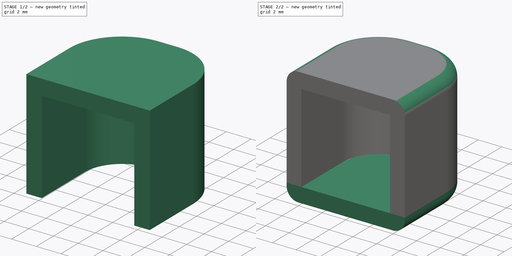
[diagram: build sequence overview — one tinted view per stage of 2, left to right]
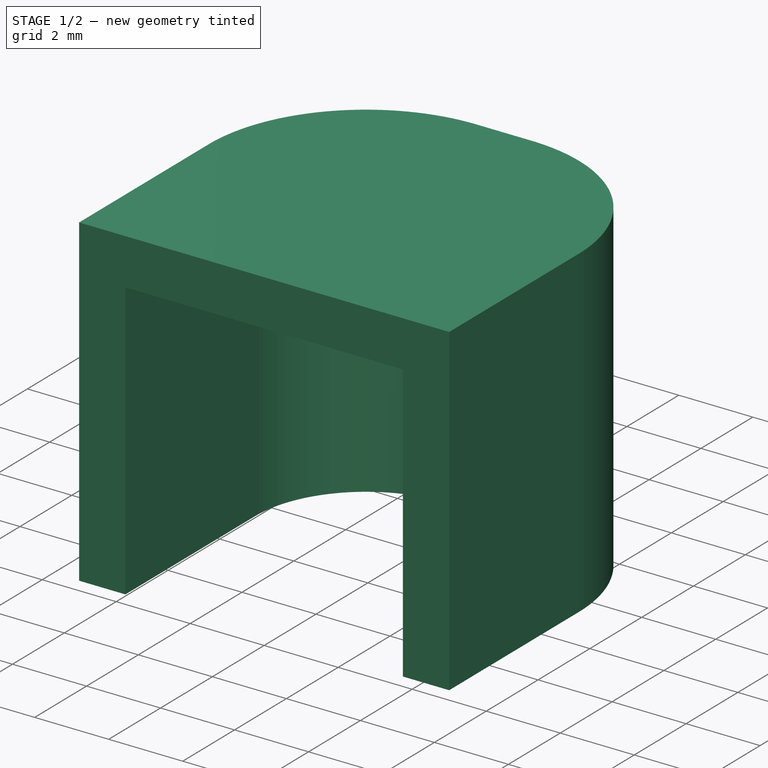
[diagram: stage 1 of 2 — iso view after this stage's code; geometry added in this stage tinted green]
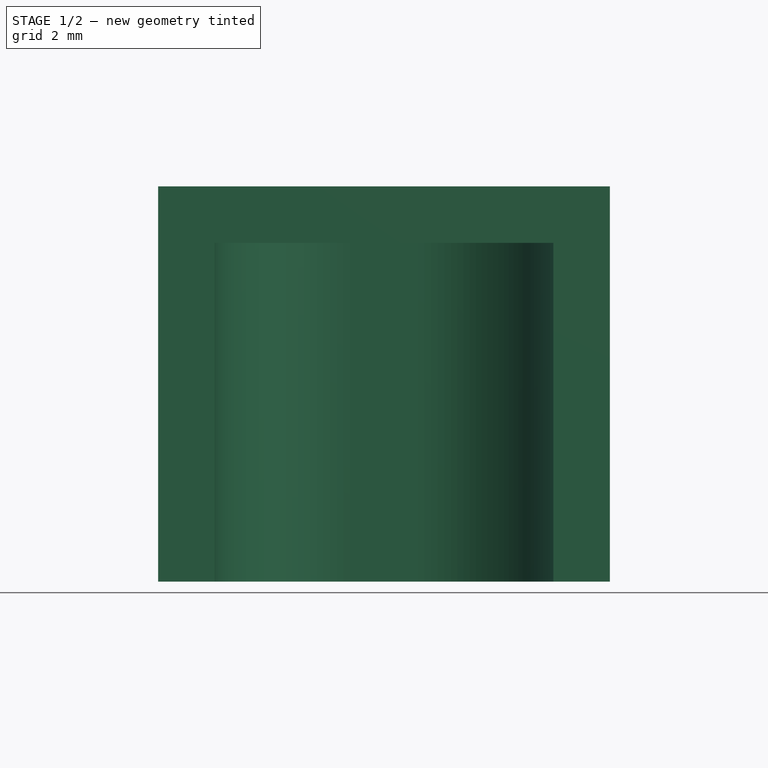
[diagram: stage 1 of 2 — front view after this stage's code; geometry added in this stage tinted green]
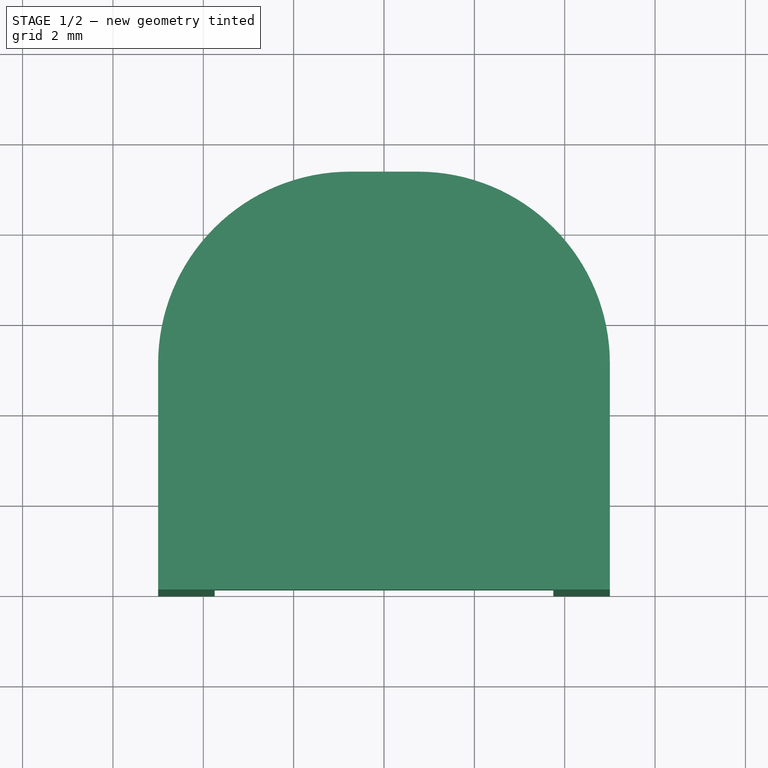
[diagram: stage 1 of 2 — top view after this stage's code; geometry added in this stage tinted green]
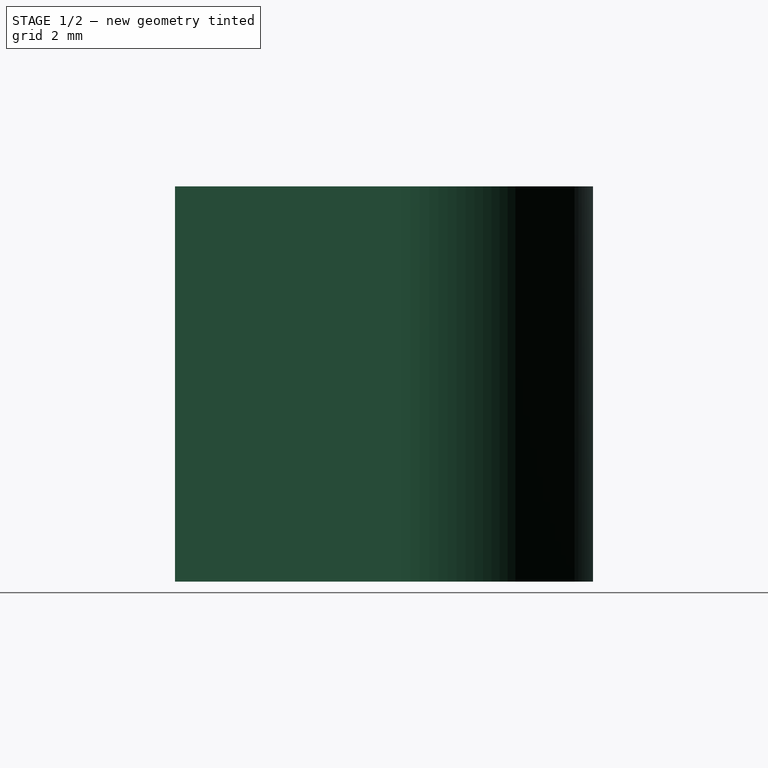
[diagram: stage 1 of 2 — right view after this stage's code; geometry added in this stage tinted green]
FCSTD DOCUMENT  (FreeCAD 0.19R21280 (Git))
Label: endcaps
License: All rights reserved
LicenseURL: http://en.wikipedia.org/wiki/All_rights_reserved
objects: Sketcher::SketchObject×2, PartDesign::Pad×2, PartDesign::Mirrored×1, PartDesign::Fillet×1, PartDesign::Body×1
note: 10 computed .brp shape members not serialized (recipe doc carries the construction recipe); baked Part::Feature solids carry a one-line shape summary decoded from their .brp

FEATURE [Sketcher::SketchObject] Sketch
  MapMode = 5
  Support = -> [XY_Plane]
  sketch-geometry (12):
    g0: LineSegment StartX=-5 StartY=0 StartZ=0 EndX=-3.75 EndY=0 EndZ=0
    g1: LineSegment StartX=-5 StartY=0 StartZ=0 EndX=-5 EndY=5 EndZ=0
    g2: LineSegment StartX=-3.75 StartY=0 StartZ=0 EndX=-3.75 EndY=5 EndZ=0
    g3: ArcOfCircle CenterX=-0.75 CenterY=5 CenterZ=0 NormalX=0 NormalY=0 NormalZ=1 AngleXU=0 Radius=3 StartAngle=1.5708 EndAngle=3.14159
    g4: LineSegment StartX=-0.75 StartY=8 StartZ=0 EndX=0.75 EndY=8 EndZ=0
    g5: ArcOfCircle CenterX=0.75 CenterY=5 CenterZ=0 NormalX=0 NormalY=0 NormalZ=1 AngleXU=0 Radius=3 StartAngle=0 EndAngle=1.5708
    g6: LineSegment StartX=3.75 StartY=5 StartZ=0 EndX=3.75 EndY=0 EndZ=0
    g7: LineSegment StartX=3.75 StartY=0 StartZ=0 EndX=5 EndY=0 EndZ=0
    g8: LineSegment StartX=5 StartY=0 StartZ=0 EndX=5 EndY=5 EndZ=0
    g9: ArcOfCircle CenterX=-0.75 CenterY=5 CenterZ=0 NormalX=0 NormalY=0 NormalZ=1 AngleXU=0 Radius=4.25 StartAngle=1.5708 EndAngle=3.14159
    g10: ArcOfCircle CenterX=0.75 CenterY=5 CenterZ=0 NormalX=0 NormalY=0 NormalZ=1 AngleXU=0 Radius=4.25 StartAngle=0 EndAngle=1.5708
    g11: LineSegment StartX=-0.75 StartY=9.25 StartZ=0 EndX=0.75 EndY=9.25 EndZ=0
  constraints (27):
    c: PointOnObject(g0,g-1)
    c: PointOnObject(g0,g-1)
    c: Coincident(g1,g0)
    c: Vertical(g1)
    c: Coincident(g2,g0)
    c: Vertical(g2)
    c: Symmetric(g4,g3,g-2)
    c: Tangent(g5,g4) = 1.5708
    c: Tangent(g4,g3) = 1.5708
    c: Tangent(g3,g2) = 1.5708
    c: Symmetric(g0,g6,g-2)
    c: Coincident(g6,g5)
    c: Symmetric(g5,g2,g-2)
    c: Coincident(g7,g6)
    c: Symmetric(g7,g0,g-2)
    c: Coincident(g8,g7)
    c: Symmetric(g8,g1,g-2)
    c: Coincident(g9,g3)
    c: Tangent(g10,g8) = -1.5708
    c: Tangent(g11,g9) = 1.5708
    c: Tangent(g10,g11) = 1.5708
    c: Coincident(g9,g1)
    c: Symmetric(g9,g10,g-2)
    c: Radius(g3) = 3
    c: DistanceX(g0,g6) = 7.5
    c: DistanceY(g8,g8) = 5
    c: DistanceX(g0,g0) = 1.25
FEATURE [PartDesign::Pad] Pad
  Length = 7.5
  Length2 = 100
  Midplane = true
  Profile = -> Sketch
  Type = 0
FEATURE [Sketcher::SketchObject] Sketch001
  MapMode = 5
  Placement = pos=(0,0,3.75) rot=(0,0,1;0rad)
  Support = -> [Pad]
  sketch-geometry (13):
    g0: LineSegment StartX=-5 StartY=0 StartZ=0 EndX=-3.75 EndY=0 EndZ=0
    g1: LineSegment StartX=-5 StartY=0 StartZ=0 EndX=-5 EndY=5 EndZ=0
    g2: LineSegment [constr] StartX=-3.75 StartY=0 StartZ=0 EndX=-3.75 EndY=5 EndZ=0
    g3: ArcOfCircle [constr] CenterX=-0.75 CenterY=5 CenterZ=0 NormalX=0 NormalY=0 NormalZ=1 AngleXU=0 Radius=3 StartAngle=1.5708 EndAngle=3.14159
    g4: LineSegment [constr] StartX=-0.75 StartY=8 StartZ=0 EndX=0.75 EndY=8 EndZ=0
    g5: ArcOfCircle [constr] CenterX=0.75 CenterY=5 CenterZ=0 NormalX=0 NormalY=0 NormalZ=1 AngleXU=0 Radius=3 StartAngle=0 EndAngle=1.5708
    g6: LineSegment [constr] StartX=3.75 StartY=5 StartZ=0 EndX=3.75 EndY=0 EndZ=0
    g7: LineSegment StartX=3.75 StartY=0 StartZ=0 EndX=5 EndY=0 EndZ=0
    g8: LineSegment StartX=5 StartY=0 StartZ=0 EndX=5 EndY=5 EndZ=0
    g9: ArcOfCircle CenterX=-0.75 CenterY=5 CenterZ=0 NormalX=0 NormalY=0 NormalZ=1 AngleXU=0 Radius=4.25 StartAngle=1.5708 EndAngle=3.14159
    g10: ArcOfCircle CenterX=0.75 CenterY=5 CenterZ=0 NormalX=0 NormalY=0 NormalZ=1 AngleXU=0 Radius=4.25 StartAngle=0 EndAngle=1.5708
    g11: LineSegment StartX=-0.75 StartY=9.25 StartZ=0 EndX=0.75 EndY=9.25 EndZ=0
    g12: LineSegment StartX=-3.75 StartY=0 StartZ=0 EndX=3.75 EndY=0 EndZ=0
  constraints (29):
    c: PointOnObject(g0,g-1)
    c: PointOnObject(g0,g-1)
    c: Coincident(g1,g0)
    c: Vertical(g1)
    c: Coincident(g2,g0)
    c: Vertical(g2)
    c: Symmetric(g4,g3,g-2)
    c: Tangent(g5,g4) = 1.5708
    c: Tangent(g4,g3) = 1.5708
    c: Tangent(g3,g2) = 1.5708
    c: Symmetric(g0,g6,g-2)
    c: Coincident(g6,g5)
    c: Symmetric(g5,g2,g-2)
    c: Coincident(g7,g6)
    c: Symmetric(g7,g0,g-2)
    c: Coincident(g8,g7)
    c: Symmetric(g8,g1,g-2)
    c: Coincident(g9,g3)
    c: Tangent(g10,g8) = -1.5708
    c: Tangent(g11,g9) = 1.5708
    c: Tangent(g10,g11) = 1.5708
    c: Coincident(g9,g1)
    c: Symmetric(g9,g10,g-2)
    c: Radius(g3) = 3
    c: DistanceX(g0,g6) = 7.5
    c: DistanceY(g8,g8) = 5
    c: DistanceX(g0,g0) = 1.25
    c: Coincident(g12,g0)
    c: Coincident(g12,g7)
FEATURE [PartDesign::Pad] Pad001
  BaseFeature = -> Pad
  Length = 1.25
  Length2 = 100
  Profile = -> Sketch001
  Type = 0
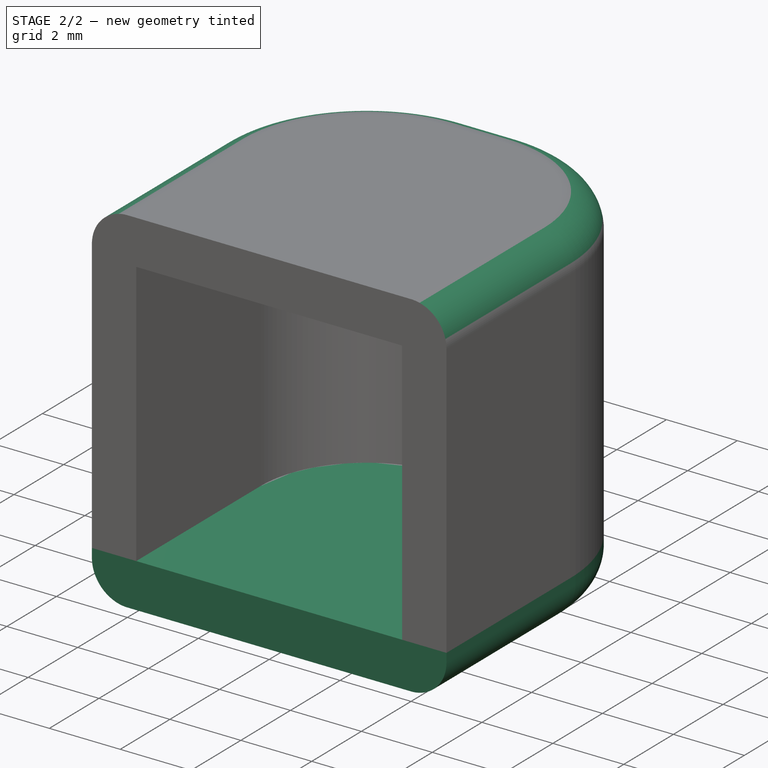
[diagram: stage 2 of 2 — iso view after this stage's code; geometry added in this stage tinted green]
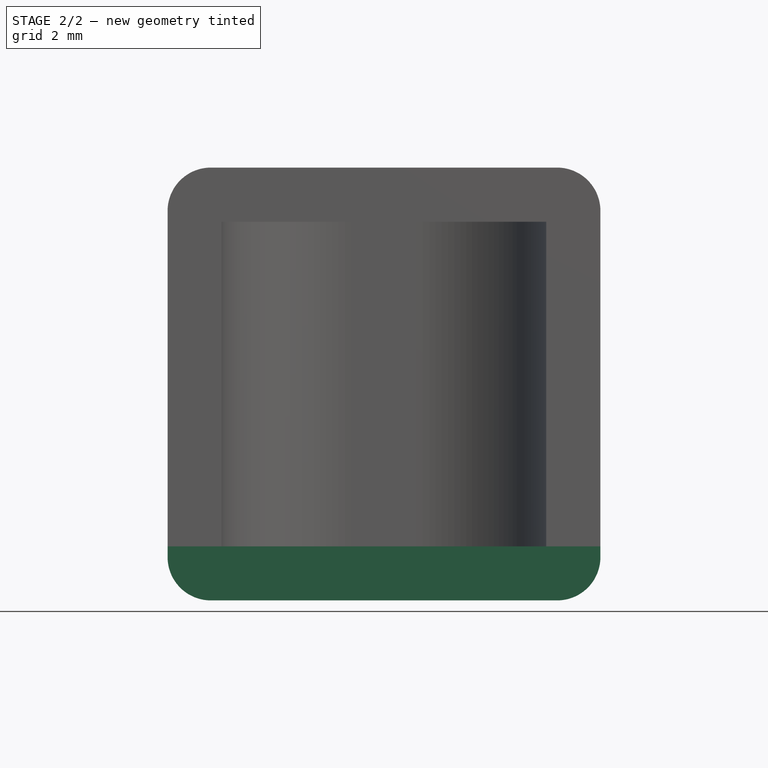
[diagram: stage 2 of 2 — front view after this stage's code; geometry added in this stage tinted green]
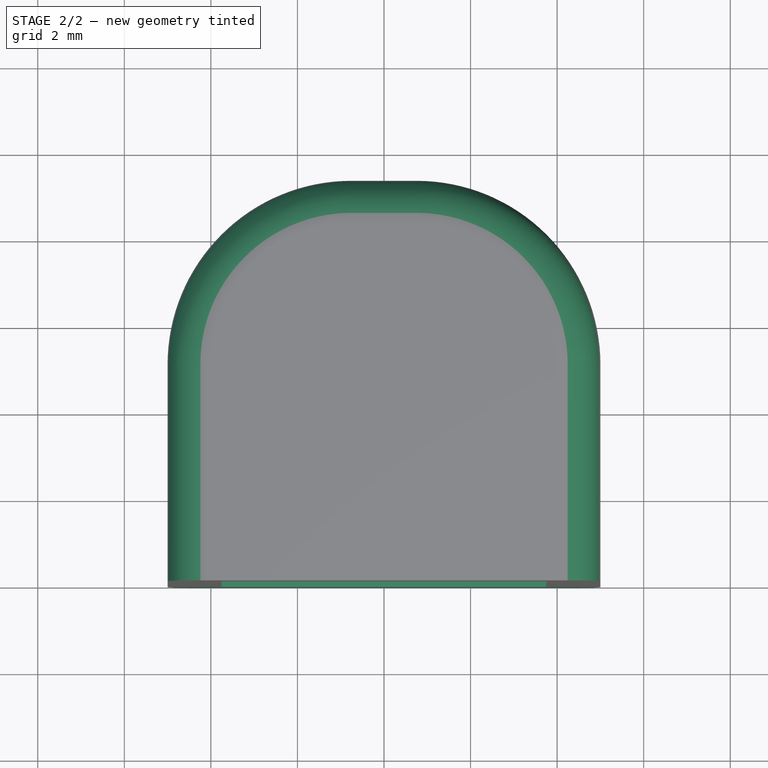
[diagram: stage 2 of 2 — top view after this stage's code; geometry added in this stage tinted green]
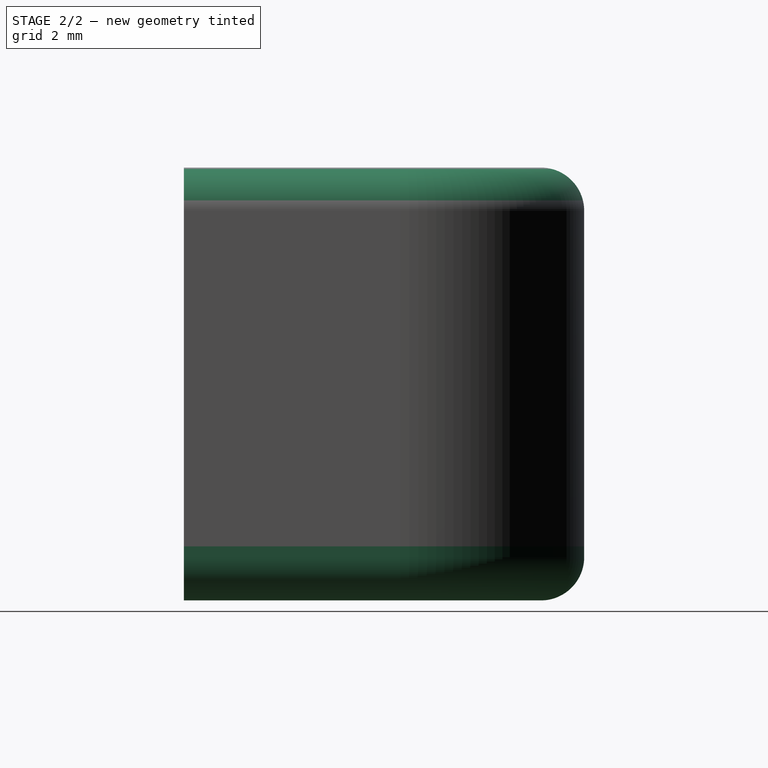
[diagram: stage 2 of 2 — right view after this stage's code; geometry added in this stage tinted green]
FEATURE [PartDesign::Mirrored] Mirrored
  BaseFeature = -> Pad001
  MirrorPlane = -> XY_Plane
  Originals = -> [Pad001]
FEATURE [PartDesign::Fillet] Fillet
  Base = -> Mirrored [Edge46,Edge39]
  BaseFeature = -> Mirrored
  Radius = 1
  SupportTransform = true
FEATURE [PartDesign::Body] Body
  Group = -> [Sketch,Pad,Pad001,Mirrored,Fillet]
  Origin = -> Origin
  Tip = -> Fillet
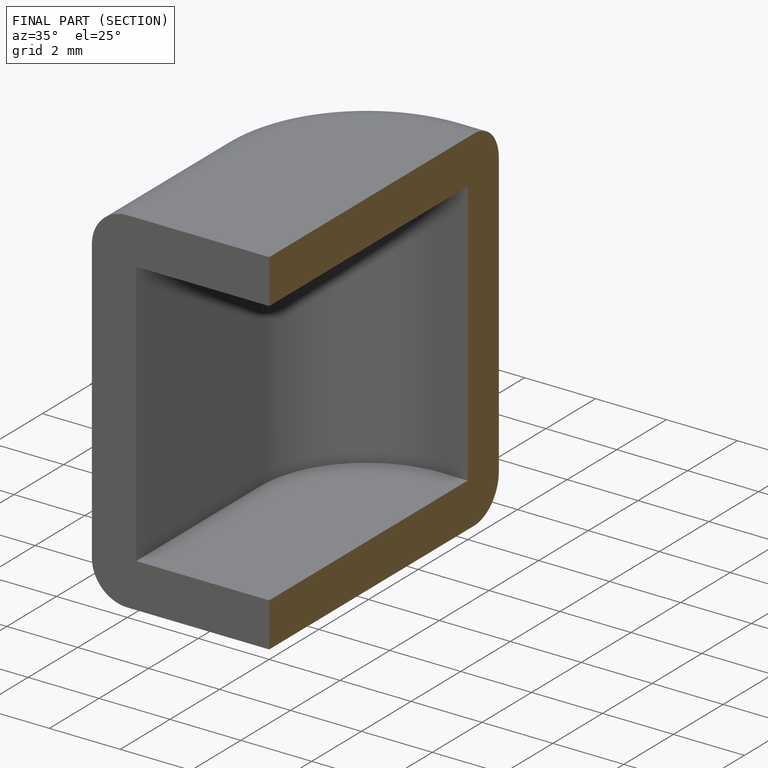
[diagram: finished part — half-section view (interior)]
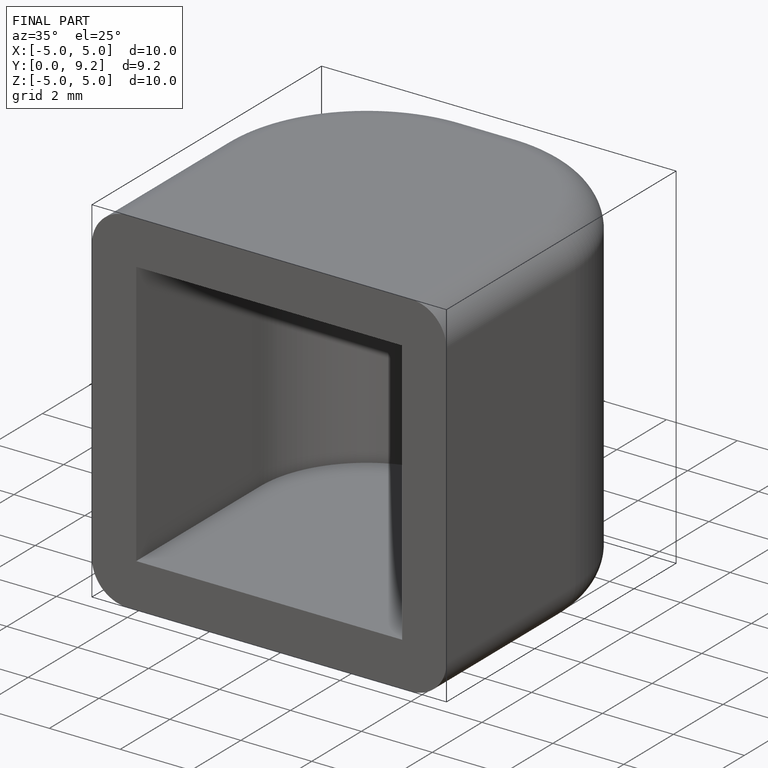
[diagram: finished part — iso view with bounding-box wireframe]
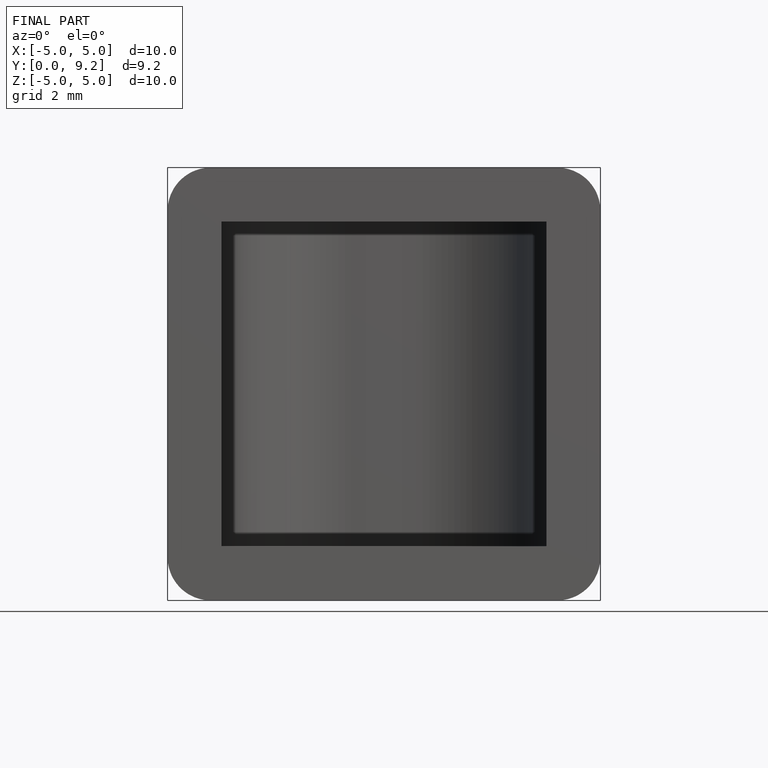
[diagram: finished part — front view with bounding-box wireframe]
